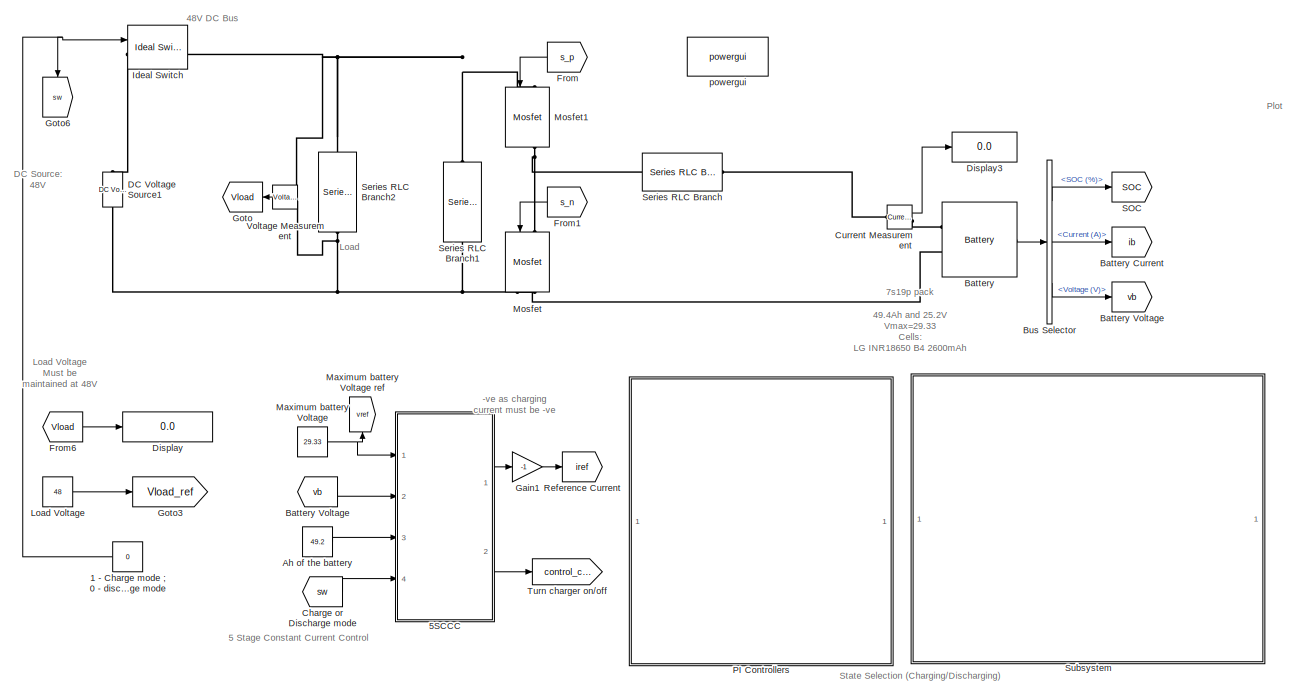
[diagram: root canvas - part 1/2, most of the canvas]
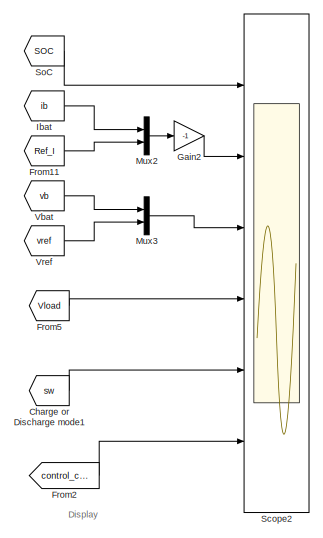
[diagram: root canvas - part 2/2, right side, full height]
MODEL slx_5654081389f2
KIND model
CONFIG AbsTol = auto
CONFIG EnableMultiTasking = off
CONFIG FixedStep = 5e-6
CONFIG MaxStep = auto
CONFIG MinStep = auto
CONFIG RelTol = 1e-3
CONFIG SampleTimeConstraint = Unconstrained
CONFIG SolverName = FixedStepDiscrete
CONFIG StartTime = 0.0
CONFIG StopTime = inf
BLOCK [Constant] 1 - Charge mode ; 0 - discharge mode  
  Value = 0
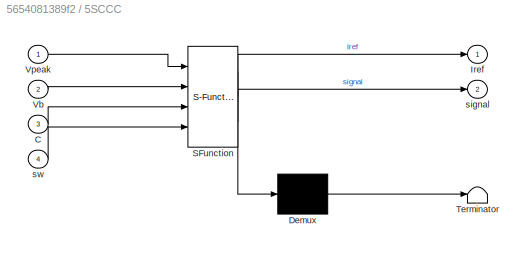
BLOCK [SubSystem] 5SCCC
  ErrorFcn = Stateflow.Translate.translate
  PermitHierarchicalResolution = ExplicitOnly
  Ports = [4, 2]
  RequestExecContextInheritance = off
  SFBlockType = Chart
  TreatAsAtomicUnit = on
BLOCK [Demux] 5SCCC/ Demux 
  Outputs = 1
  Ports = [1, 1]
BLOCK [S-Function] 5SCCC/ SFunction 
  EnableBusSupport = on
  FunctionName = sf_sfun
  PortCounts = [4 3]
  Ports = [4, 3]
  SFcnIsStateOwnerBlock = off
  SFunctionDeploymentMode = off
  Tag = Stateflow S-Function 3
BLOCK [Terminator] 5SCCC/ Terminator 
BLOCK [Inport] 5SCCC/C
  Port = 3
BLOCK [Outport] 5SCCC/Iref
BLOCK [Inport] 5SCCC/Vb
  Port = 2
BLOCK [Inport] 5SCCC/Vpeak
BLOCK [Outport] 5SCCC/signal
  Port = 2
BLOCK [Inport] 5SCCC/sw
  Port = 4
BLOCK [Constant] Ah of the battery
  Value = 49.2
BLOCK [Reference] Battery  REF=electricdrivelib/Extra Sources/Battery
  Ports = [0, 1, 0, 0, 0, 2]
  SourceBlock = electricdrivelib/Extra Sources/Battery
  SourceProductBaseCode = PS
  SourceType = Battery
BLOCK [Goto] Battery Current
  GotoTag = ib
  TagVisibility = global
BLOCK [Goto] Battery Voltage
  GotoTag = vb
  TagVisibility = global
BLOCK [From] Battery Voltage 
  GotoTag = vb
  TagVisibility = global
BLOCK [BusSelector] Bus Selector
  OutputSignals = SOC (%),Current (A),Voltage (V)
  Ports = [1, 3]
BLOCK [From] Charge or Discharge mode
  GotoTag = sw
  TagVisibility = global
BLOCK [From] Charge or Discharge mode1
  GotoTag = sw
  TagVisibility = global
BLOCK [Reference] Current Measurement  REF=powerlib/Measurements/Current Measurement
  Ports = [0, 1, 0, 0, 0, 1, 1]
  SourceBlock = powerlib/Measurements/Current Measurement
  SourceProductBaseCode = PS
  SourceType = Current Measurement
  UserDataPersistent = on
BLOCK [Reference] DC Voltage Source1  REF=powerlib/Electrical
Sources/DC Voltage Source
  NameLocation = right
  Ports = [0, 0, 0, 0, 0, 1, 1]
  SourceBlock = powerlib/Electrical\nSources/DC Voltage Source
  SourceProductBaseCode = PS
  SourceType = DC Voltage Source
BLOCK [Display] Display
  Decimation = 1
  Ports = [1]
BLOCK [Display] Display3
  Decimation = 1
  Ports = [1]
BLOCK [From] From
  GotoTag = s_p
  NameLocation = top
  TagVisibility = global
BLOCK [From] From1
  GotoTag = s_n
  NameLocation = top
  TagVisibility = global
BLOCK [From] From11
  GotoTag = Ref_I
  TagVisibility = global
BLOCK [From] From2
  GotoTag = control_cmd
  TagVisibility = global
BLOCK [From] From5
  GotoTag = Vload
  TagVisibility = global
BLOCK [From] From6
  GotoTag = Vload
  NameLocation = top
  TagVisibility = global
BLOCK [Gain] Gain1
  Gain = -1
BLOCK [Gain] Gain2
  Gain = -1
BLOCK [Goto] Goto
  GotoTag = Vload
  NameLocation = top
  TagVisibility = global
BLOCK [Goto] Goto3
  GotoTag = Vload_ref
  TagVisibility = global
BLOCK [Goto] Goto6
  GotoTag = sw
  NameLocation = left
  TagVisibility = global
BLOCK [From] Ibat
  GotoTag = ib
  TagVisibility = global
BLOCK [Reference] Ideal Switch  REF=powerlib/Power
Electronics/Ideal Switch
  Ports = [1, 1, 0, 0, 0, 1, 1]
  SourceBlock = powerlib/Power\nElectronics/Ideal Switch
  SourceProductBaseCode = PS
  SourceType = Ideal Switch
BLOCK [Constant] Load Voltage
  Value = 48
BLOCK [Constant] Maximum battery Voltage
  Value = 29.33
BLOCK [Goto] Maximum battery Voltage ref
  GotoTag = vref
  NameLocation = top
  TagVisibility = global
BLOCK [Reference] Mosfet  REF=powerlib/Power
Electronics/Mosfet
  NameLocation = left
  Ports = [1, 1, 0, 0, 0, 1, 1]
  SourceBlock = powerlib/Power\nElectronics/Mosfet
  SourceProductBaseCode = PS
  SourceType = Mosfet
BLOCK [Reference] Mosfet1  REF=powerlib/Power
Electronics/Mosfet
  NameLocation = left
  Ports = [1, 1, 0, 0, 0, 1, 1]
  SourceBlock = powerlib/Power\nElectronics/Mosfet
  SourceProductBaseCode = PS
  SourceType = Mosfet
BLOCK [Mux] Mux2
  DisplayOption = bar
  Inputs = 2
  Ports = [2, 1]
BLOCK [Mux] Mux3
  DisplayOption = bar
  Inputs = 2
  Ports = [2, 1]
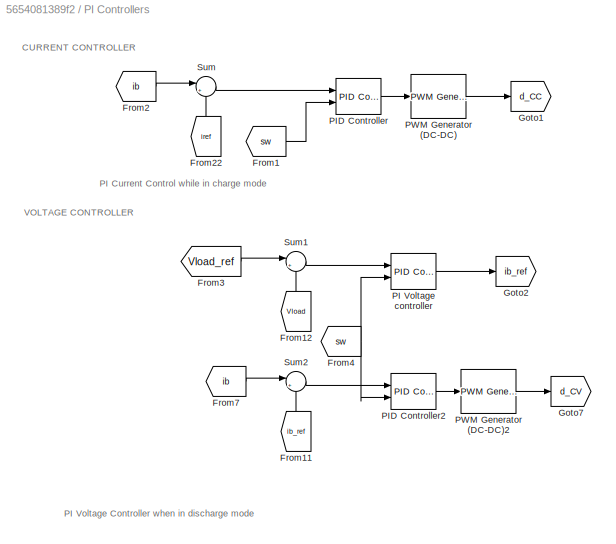
BLOCK [SubSystem] PI Controllers
  Ports = []
  RequestExecContextInheritance = off
BLOCK [From] PI Controllers/From1
  GotoTag = sw
  TagVisibility = global
BLOCK [From] PI Controllers/From11
  GotoTag = ib_ref
  NameLocation = right
  TagVisibility = global
BLOCK [From] PI Controllers/From12
  GotoTag = Vload
  NameLocation = right
  TagVisibility = global
BLOCK [From] PI Controllers/From2
  GotoTag = ib
  TagVisibility = global
BLOCK [From] PI Controllers/From22
  GotoTag = iref
  NameLocation = right
  TagVisibility = global
BLOCK [From] PI Controllers/From3
  GotoTag = Vload_ref
  TagVisibility = global
BLOCK [From] PI Controllers/From4
  GotoTag = sw
  TagVisibility = global
BLOCK [From] PI Controllers/From7
  GotoTag = ib
  TagVisibility = global
BLOCK [Goto] PI Controllers/Goto1
  GotoTag = d_CC
  TagVisibility = global
BLOCK [Goto] PI Controllers/Goto2
  GotoTag = ib_ref
  TagVisibility = global
BLOCK [Goto] PI Controllers/Goto7
  GotoTag = d_CV
  TagVisibility = global
BLOCK [Reference] PI Controllers/PI Voltage controller  REF=pid_lib/PID Controller
  Ports = [2, 1]
  SourceBlock = pid_lib/PID Controller
  SourceProductBaseCode = SL
  SourceType = PID 1dof
BLOCK [Reference] PI Controllers/PID Controller  REF=pid_lib/PID Controller
  Ports = [2, 1]
  SourceBlock = pid_lib/PID Controller
  SourceProductBaseCode = SL
  SourceType = PID 1dof
BLOCK [Reference] PI Controllers/PID Controller2  REF=pid_lib/PID Controller
  Ports = [2, 1]
  SourceBlock = pid_lib/PID Controller
  SourceProductBaseCode = SL
  SourceType = PID 1dof
BLOCK [Reference] PI Controllers/PWM Generator (DC-DC)  REF=powerlib_meascontrol/Pulse & Signal
Generators/PWM Generator
(DC-DC)
  Ports = [1, 1]
  SourceBlock = powerlib_meascontrol/Pulse & Signal\nGenerators/PWM Generator\n(DC-DC)
  SourceProductBaseCode = PS
  SourceType = PWM Generator (DC-DC)
BLOCK [Reference] PI Controllers/PWM Generator (DC-DC)2  REF=powerlib_meascontrol/Pulse & Signal
Generators/PWM Generator
(DC-DC)
  Ports = [1, 1]
  SourceBlock = powerlib_meascontrol/Pulse & Signal\nGenerators/PWM Generator\n(DC-DC)
  SourceProductBaseCode = PS
  SourceType = PWM Generator (DC-DC)
BLOCK [Sum] PI Controllers/Sum
  Inputs = |+-
  Ports = [2, 1]
BLOCK [Sum] PI Controllers/Sum1
  Inputs = |+-
  Ports = [2, 1]
BLOCK [Sum] PI Controllers/Sum2
  Inputs = |+-
  Ports = [2, 1]
BLOCK [Goto] Reference Current
  GotoTag = iref
  TagVisibility = global
BLOCK [Goto] SOC
  GotoTag = SOC
  TagVisibility = global
BLOCK [Scope] Scope2
  Floating = off
  NumInputPorts = 6
  Ports = [6]
  ScopeSpecificationString = Simulink.scopes.TimeScopeBlockCfg('CurrentConfiguration', extmgr.ConfigurationSet(extmgr.Configuration('Core','General UI',true,'FigureColor',[0 0 0]),extmgr.Configuration('Core','Source UI',true),extmgr.Configuration('Sources','WiredSimulink',true,'DataLoggingVariableName','ScopeData2'),extmgr.Configuration('Visuals','Time Domain',true,'SerializedDisplays',{struct('MinYLimReal','96.96249','MaxYLi...<+5370ch>
BLOCK [Reference] Series RLC Branch  REF=powerlib/Elements/Series RLC Branch
  Ports = [0, 0, 0, 0, 0, 1, 1]
  SourceBlock = powerlib/Elements/Series RLC Branch
  SourceProductBaseCode = PS
  SourceType = Series RLC Branch
BLOCK [Reference] Series RLC Branch1  REF=powerlib/Elements/Series RLC Branch
  NameLocation = left
  Ports = [0, 0, 0, 0, 0, 1, 1]
  SourceBlock = powerlib/Elements/Series RLC Branch
  SourceProductBaseCode = PS
  SourceType = Series RLC Branch
BLOCK [Reference] Series RLC Branch2  REF=powerlib/Elements/Series RLC Branch
  NameLocation = left
  Ports = [0, 0, 0, 0, 0, 1, 1]
  SourceBlock = powerlib/Elements/Series RLC Branch
  SourceProductBaseCode = PS
  SourceType = Series RLC Branch
BLOCK [From] SoC
  GotoTag = SOC
  TagVisibility = global
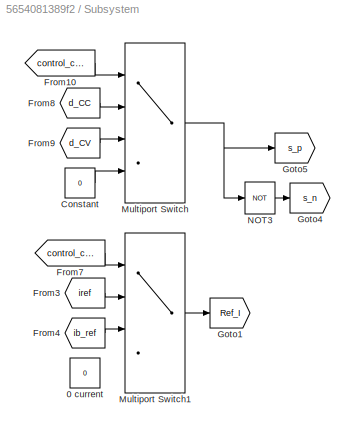
BLOCK [SubSystem] Subsystem
  Ports = []
  RequestExecContextInheritance = off
BLOCK [Constant] Subsystem/0 current
  Value = 0
BLOCK [Constant] Subsystem/Constant
  Value = 0
BLOCK [From] Subsystem/From10
  GotoTag = control_cmd
  TagVisibility = global
BLOCK [From] Subsystem/From3
  GotoTag = iref
  TagVisibility = global
BLOCK [From] Subsystem/From4
  GotoTag = ib_ref
  TagVisibility = global
BLOCK [From] Subsystem/From7
  GotoTag = control_cmd
  TagVisibility = global
BLOCK [From] Subsystem/From8
  GotoTag = d_CC
  TagVisibility = global
BLOCK [From] Subsystem/From9
  GotoTag = d_CV
  TagVisibility = global
BLOCK [Goto] Subsystem/Goto1
  GotoTag = Ref_I
  TagVisibility = global
BLOCK [Goto] Subsystem/Goto4
  GotoTag = s_n
  TagVisibility = global
BLOCK [Goto] Subsystem/Goto5
  GotoTag = s_p
  TagVisibility = global
BLOCK [MultiPortSwitch] Subsystem/Multiport Switch
  InputSameDT = off
  Ports = [4, 1]
  SaturateOnIntegerOverflow = off
BLOCK [MultiPortSwitch] Subsystem/Multiport Switch1
  InputSameDT = off
  Ports = [4, 1]
  SaturateOnIntegerOverflow = off
BLOCK [Logic] Subsystem/NOT3
  AllPortsSameDT = off
  IconShape = distinctive
  Operator = NOT
  OutDataTypeStr = boolean
  Ports = [1, 1]
BLOCK [Goto] Turn charger on//off
  GotoTag = control_cmd
  TagVisibility = global
BLOCK [From] Vbat
  GotoTag = vb
  TagVisibility = global
BLOCK [Reference] Voltage Measurement  REF=powerlib/Measurements/Voltage Measurement
  Ports = [0, 1, 0, 0, 0, 2]
  SourceBlock = powerlib/Measurements/Voltage Measurement
  SourceProductBaseCode = PS
  SourceType = Voltage Measurement
  UserDataPersistent = on
BLOCK [From] Vref
  GotoTag = vref
  TagVisibility = global
BLOCK [Reference] powergui  REF=powerlib/powergui
  Ports = []
  Priority = 1
  SourceBlock = powerlib/powergui
  SourceProductBaseCode = PS
  SourceType = PSB option menu block
ANNOTATION (root): -ve as charging current must be -ve
ANNOTATION (root): 48V DC Bus
ANNOTATION (root): DC Source: 48V
ANNOTATION (root): Load
ANNOTATION (root): 7s19p pack 49.4Ah and 25.2V Vmax=29.33 Cells: LG INR18650 B4 2600mAh
ANNOTATION (root): 5 Stage Constant Current Control
ANNOTATION (root): Display
ANNOTATION (root): State Selection (Charging/Discharging)
ANNOTATION (root): Load Voltage Must be maintained at 48V
ANNOTATION (root): Plot
ANNOTATION PI Controllers: PI Current Control while in charge mode
ANNOTATION PI Controllers: PI Voltage Controller when in discharge mode
ANNOTATION PI Controllers: CURRENT CONTROLLER
ANNOTATION PI Controllers: VOLTAGE CONTROLLER
NET 1 - Charge mode ; 0 - discharge mode  :1 -> Goto6:1, Ideal Switch:1
LINE 5SCCC:1 -> Gain1:1
LINE 5SCCC:2 -> Turn charger on//off:1
LINE Ah of the battery:1 -> 5SCCC:3
LINE Battery Voltage :1 -> 5SCCC:2
LINE Battery:1 -> Bus Selector:1
LINE Bus Selector:1 -> SOC:1
LINE Bus Selector:2 -> Battery Current:1
LINE Bus Selector:3 -> Battery Voltage:1
LINE Charge or Discharge mode1:1 -> Scope2:5
LINE Charge or Discharge mode:1 -> 5SCCC:4
LINE Current Measurement:1 -> Display3:1
LINE From11:1 -> Mux2:2
LINE From1:1 -> Mosfet:1
LINE From2:1 -> Scope2:6
LINE From5:1 -> Scope2:4
LINE From6:1 -> Display:1
LINE From:1 -> Mosfet1:1
LINE Gain1:1 -> Reference Current:1
LINE Gain2:1 -> Scope2:2
LINE Ibat:1 -> Mux2:1
LINE Load Voltage:1 -> Goto3:1
NET Maximum battery Voltage:1 -> 5SCCC:1, Maximum battery Voltage ref:1
LINE Mux2:1 -> Gain2:1
LINE Mux3:1 -> Scope2:3
LINE PI Controllers/From11:1 -> PI Controllers/Sum2:2
LINE PI Controllers/From12:1 -> PI Controllers/Sum1:2
LINE PI Controllers/From1:1 -> PI Controllers/PID Controller:2
LINE PI Controllers/From22:1 -> PI Controllers/Sum:2
LINE PI Controllers/From2:1 -> PI Controllers/Sum:1
LINE PI Controllers/From3:1 -> PI Controllers/Sum1:1
NET PI Controllers/From4:1 -> PI Controllers/PI Voltage controller:2, PI Controllers/PID Controller2:2
LINE PI Controllers/From7:1 -> PI Controllers/Sum2:1
LINE PI Controllers/PI Voltage controller:1 -> PI Controllers/Goto2:1
LINE PI Controllers/PID Controller2:1 -> PI Controllers/PWM Generator (DC-DC)2:1
LINE PI Controllers/PID Controller:1 -> PI Controllers/PWM Generator (DC-DC):1
LINE PI Controllers/PWM Generator (DC-DC)2:1 -> PI Controllers/Goto7:1
LINE PI Controllers/PWM Generator (DC-DC):1 -> PI Controllers/Goto1:1
LINE PI Controllers/Sum1:1 -> PI Controllers/PI Voltage controller:1
LINE PI Controllers/Sum2:1 -> PI Controllers/PID Controller2:1
LINE PI Controllers/Sum:1 -> PI Controllers/PID Controller:1
LINE SoC:1 -> Scope2:1
LINE Subsystem/Constant:1 -> Subsystem/Multiport Switch:4
LINE Subsystem/From10:1 -> Subsystem/Multiport Switch:1
LINE Subsystem/From3:1 -> Subsystem/Multiport Switch1:2
LINE Subsystem/From4:1 -> Subsystem/Multiport Switch1:3
LINE Subsystem/From7:1 -> Subsystem/Multiport Switch1:1
LINE Subsystem/From8:1 -> Subsystem/Multiport Switch:2
LINE Subsystem/From9:1 -> Subsystem/Multiport Switch:3
LINE Subsystem/Multiport Switch1:1 -> Subsystem/Goto1:1
NET Subsystem/Multiport Switch:1 -> Subsystem/Goto5:1, Subsystem/NOT3:1
LINE Subsystem/NOT3:1 -> Subsystem/Goto4:1
LINE Vbat:1 -> Mux3:1
LINE Voltage Measurement:1 -> Goto:1
LINE Vref:1 -> Mux3:2
PLINE Battery:LConn1 -- Current Measurement:RConn1
PNET net1: Battery:LConn2 -- DC Voltage Source1:LConn1 -- Mosfet:RConn1 -- Series RLC Branch1:RConn1 -- Series RLC Branch2:RConn1 -- Voltage Measurement:LConn2
PLINE Current Measurement:LConn1 -- Series RLC Branch:RConn1
PLINE DC Voltage Source1:RConn1 -- Ideal Switch:LConn1
PNET net2: Ideal Switch:RConn1 -- Mosfet1:LConn1 -- Series RLC Branch1:LConn1 -- Series RLC Branch2:LConn1 -- Voltage Measurement:LConn1
PNET net3: Mosfet1:RConn1 -- Mosfet:LConn1 -- Series RLC Branch:LConn1
note: NET lines group one-source signal fan-out (src -> all destinations, sorted); 1:1 wires keep LINE; PNET lines group multi-terminal physical nets as a canonical sorted terminal list (undirected conserving connections); 2-terminal nets keep the pairwise PLINE form
CHART 5SCCC states=8 transitions=17
  STATE_LABEL 'Initialize\nentry:\nsignal=1;\nIref=1*C;\n'
  STATE_LABEL 'fifth_stage\nentry:\nIref=0.01*C;'
  STATE_LABEL 'end\nentry:\nsignal=2;'
  STATE_LABEL 'back_to_charge\nentry:\nsignal=1;\nIref=0;\n'
  STATE_LABEL 'first_stage\nentry:\nIref=0.32*C;'
  STATE_LABEL 'fourth_stage\nentry:\nIref=0.057*C;'
  STATE_LABEL 'second_stage\nentry:\nIref=0.1*C;'
  STATE_LABEL 'third_stage\nentry:\nIref=0.1*C;'
CHART  states=0 transitions=0
